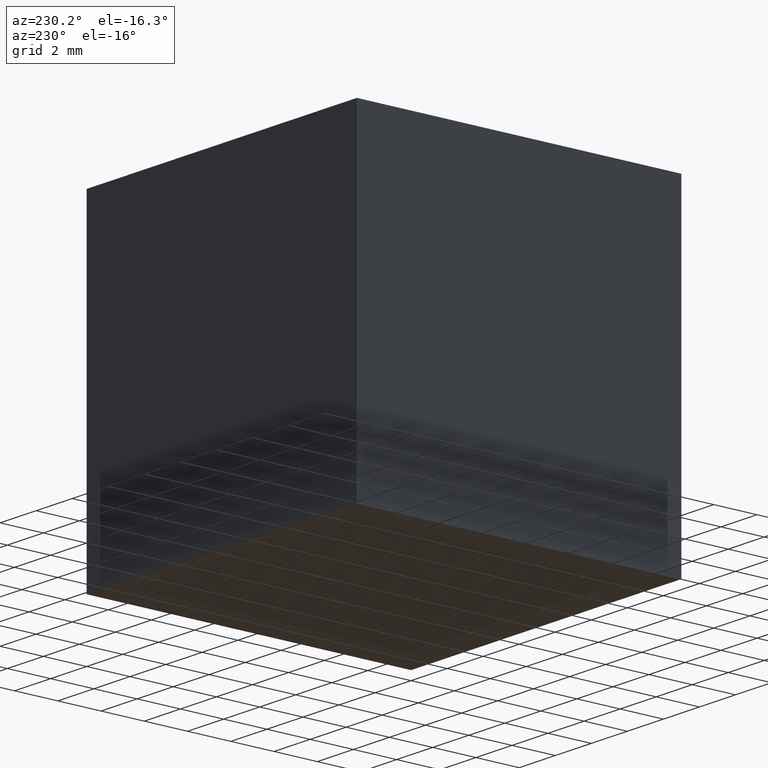
[diagram: clean part render]
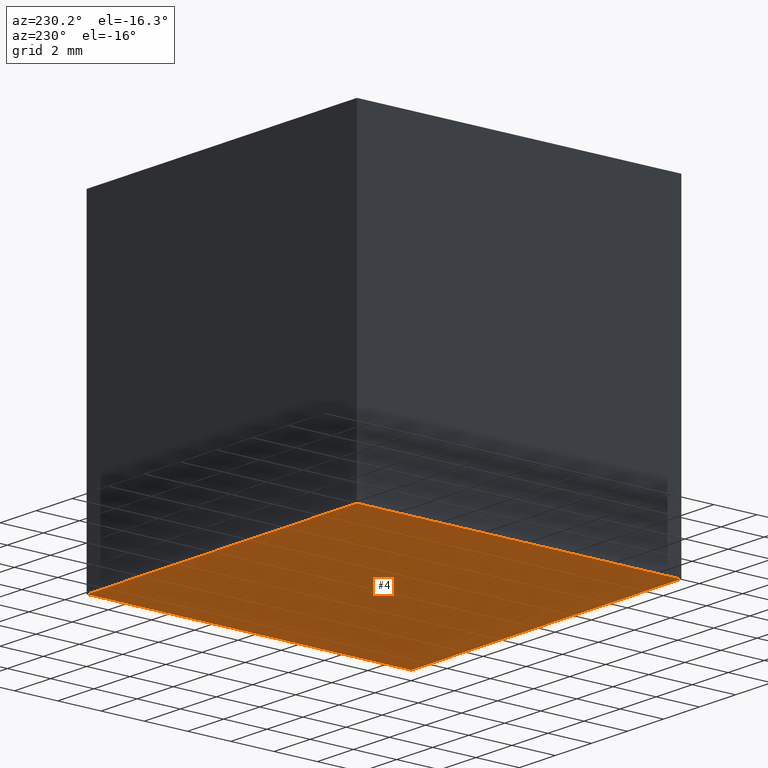
[diagram: same view with one face highlighted and labeled with its STEP entity id]
A machine part, auxiliary view. The second image highlights one B-rep face of the part: STEP entity #4.
In plain terms, the highlighted planar face has unit normal (0, -0, 1).
Its self-contained STEP definition (entity closure, byte-faithful):
#4 = ADVANCED_FACE ( 'NONE', ( #130 ), #169, .F. ) ;
#25 = CARTESIAN_POINT ( 'NONE',  ( -15.00000000000000000, 15.00000000000000000, -14.99999999999999600 ) ) ;
#35 = ORIENTED_EDGE ( 'NONE', *, *, #176, .F. ) ;
#43 = VERTEX_POINT ( 'NONE', #59 ) ;
#47 = ORIENTED_EDGE ( 'NONE', *, *, #111, .T. ) ;
#51 = CARTESIAN_POINT ( 'NONE',  ( -15.00000000000000000, 0.0000000000000000000, -14.99999999999999600 ) ) ;
#59 = CARTESIAN_POINT ( 'NONE',  ( 0.0000000000000000000, 15.00000000000000000, -15.00000000000000000 ) ) ;
#60 = VERTEX_POINT ( 'NONE', #289 ) ;
#74 = VECTOR ( 'NONE', #131, 1000.000000000000000 ) ;
#78 = VECTOR ( 'NONE', #191, 1000.000000000000000 ) ;
#91 = LINE ( 'NONE', #270, #285 ) ;
#96 = CARTESIAN_POINT ( 'NONE',  ( 0.0000000000000000000, 15.00000000000000000, -15.00000000000000000 ) ) ;
#99 = CARTESIAN_POINT ( 'NONE',  ( 0.0000000000000000000, 15.00000000000000000, -15.00000000000000000 ) ) ;
#103 = DIRECTION ( 'NONE',  ( 2.312964634635743000E-016, -0.0000000000000000000, 1.000000000000000000 ) ) ;
#111 = EDGE_CURVE ( 'NONE', #60, #232, #91, .T. ) ;
#128 = ORIENTED_EDGE ( 'NONE', *, *, #264, .F. ) ;
#130 = FACE_OUTER_BOUND ( 'NONE', #206, .T. ) ;
#131 = DIRECTION ( 'NONE',  ( -0.0000000000000000000, -1.000000000000000000, -0.0000000000000000000 ) ) ;
#152 = EDGE_CURVE ( 'NONE', #43, #60, #256, .T. ) ;
#155 = CARTESIAN_POINT ( 'NONE',  ( 0.0000000000000000000, 15.00000000000000000, -15.00000000000000000 ) ) ;
#169 = PLANE ( 'NONE',  #283 ) ;
#174 = LINE ( 'NONE', #96, #183 ) ;
#176 = EDGE_CURVE ( 'NONE', #43, #296, #174, .T. ) ;
#180 = CARTESIAN_POINT ( 'NONE',  ( -15.00000000000000000, 15.00000000000000000, -14.99999999999999600 ) ) ;
#183 = VECTOR ( 'NONE', #217, 1000.000000000000000 ) ;
#191 = DIRECTION ( 'NONE',  ( -0.0000000000000000000, -1.000000000000000000, -0.0000000000000000000 ) ) ;
#195 = LINE ( 'NONE', #180, #74 ) ;
#206 = EDGE_LOOP ( 'NONE', ( #47, #128, #35, #277 ) ) ;
#217 = DIRECTION ( 'NONE',  ( -1.000000000000000000, 0.0000000000000000000, 2.312964634635743000E-016 ) ) ;
#220 = DIRECTION ( 'NONE',  ( -1.000000000000000000, 0.0000000000000000000, 2.312964634635743000E-016 ) ) ;
#232 = VERTEX_POINT ( 'NONE', #51 ) ;
#256 = LINE ( 'NONE', #99, #78 ) ;
#264 = EDGE_CURVE ( 'NONE', #296, #232, #195, .T. ) ;
#270 = CARTESIAN_POINT ( 'NONE',  ( 0.0000000000000000000, 0.0000000000000000000, -15.00000000000000000 ) ) ;
#271 = DIRECTION ( 'NONE',  ( 1.000000000000000000, 0.0000000000000000000, -2.312964634635743000E-016 ) ) ;
#277 = ORIENTED_EDGE ( 'NONE', *, *, #152, .T. ) ;
#283 = AXIS2_PLACEMENT_3D ( 'NONE', #155, #103, #271 ) ;
#285 = VECTOR ( 'NONE', #220, 1000.000000000000000 ) ;
#289 = CARTESIAN_POINT ( 'NONE',  ( 0.0000000000000000000, 0.0000000000000000000, -15.00000000000000000 ) ) ;
#296 = VERTEX_POINT ( 'NONE', #25 ) ;